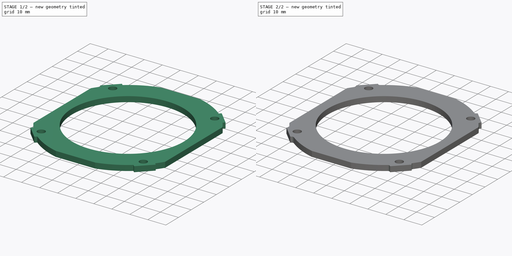
[diagram: build sequence overview — one tinted view per stage of 2, left to right]
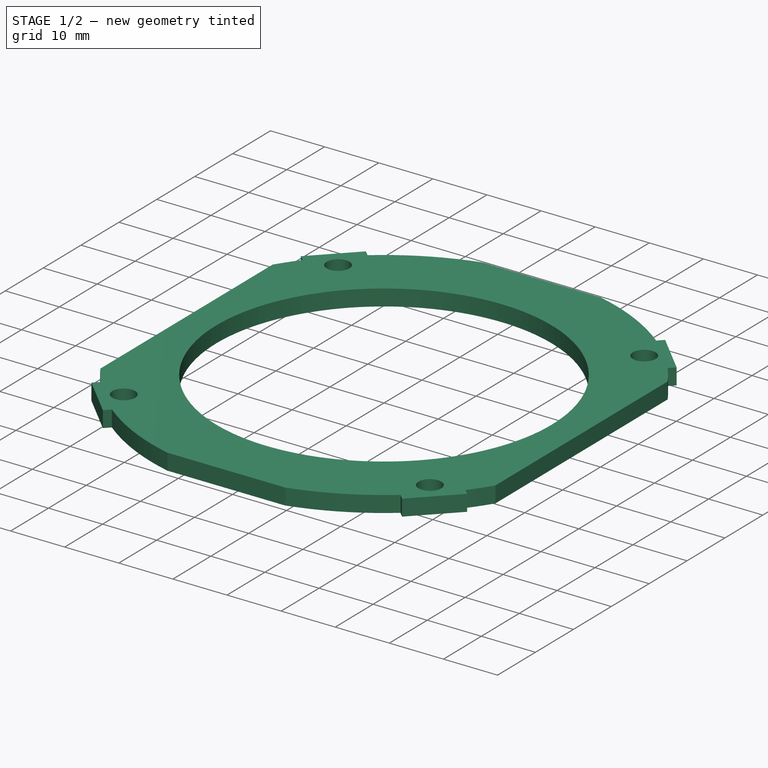
[diagram: stage 1 of 2 — iso view after this stage's code; geometry added in this stage tinted green]
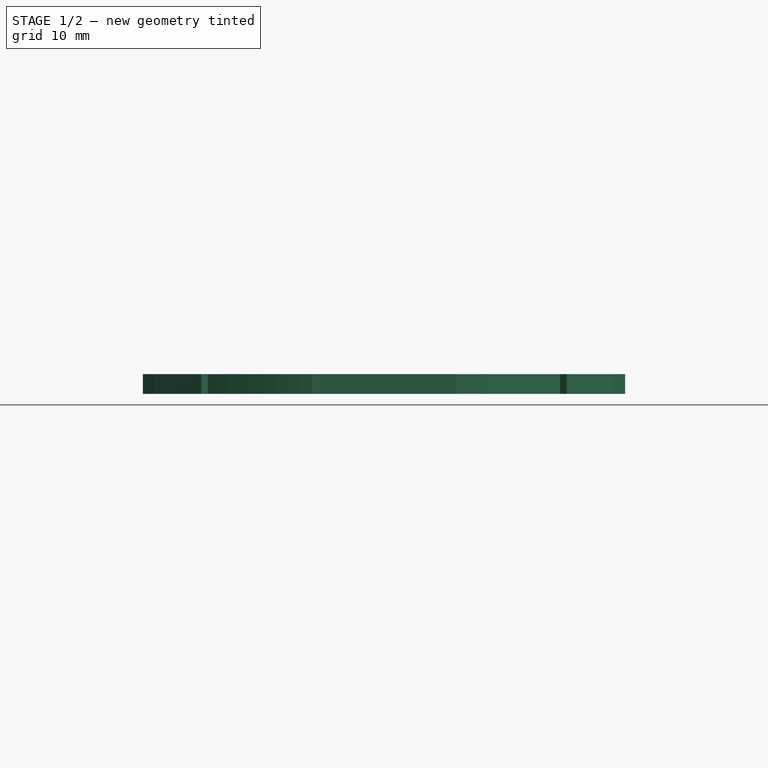
[diagram: stage 1 of 2 — front view after this stage's code; geometry added in this stage tinted green]
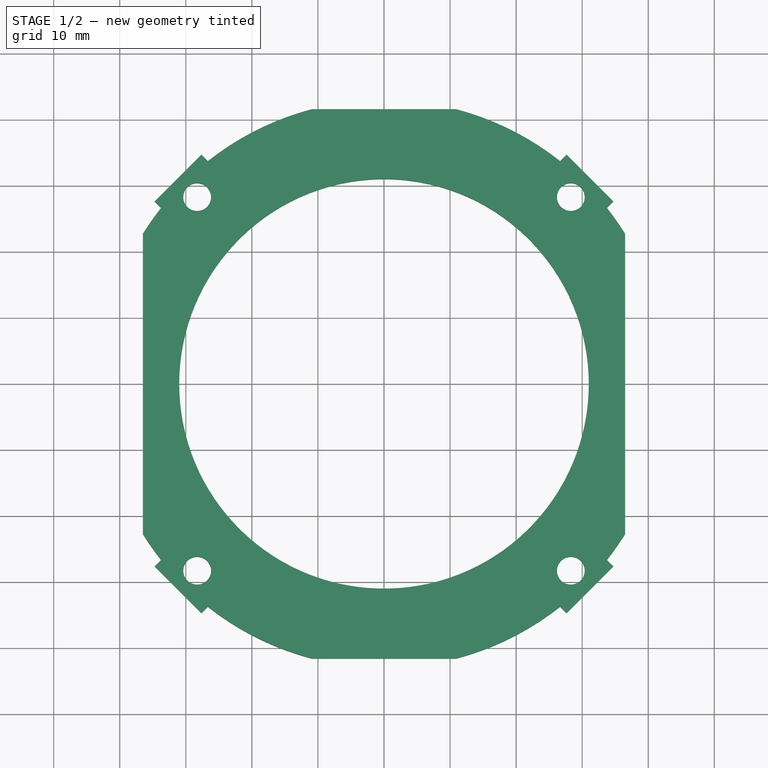
[diagram: stage 1 of 2 — top view after this stage's code; geometry added in this stage tinted green]
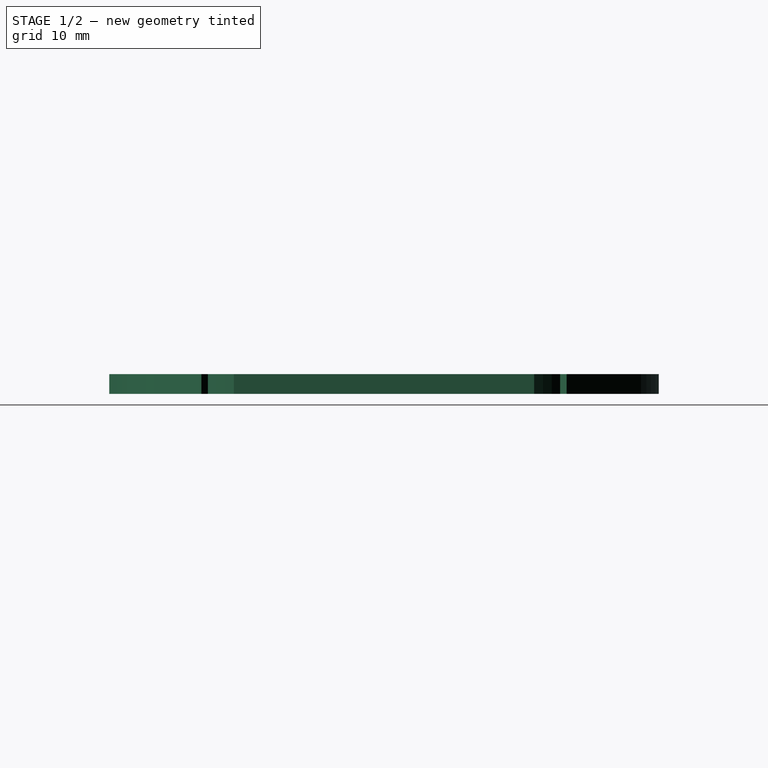
[diagram: stage 1 of 2 — right view after this stage's code; geometry added in this stage tinted green]
FCSTD DOCUMENT  (FreeCAD 0.17R5235 (Git shallow))
Label: C1011-3
License: CreativeCommons Attribution-ShareAlike
LicenseURL: http://creativecommons.org/licenses/by-sa/4.0/
objects: Sketcher::SketchObject×1, PartDesign::Pad×1, PartDesign::Fillet×1, PartDesign::Body×1, TechDraw::DrawSVGTemplate×1, TechDraw::DrawProjGroupItem×1, TechDraw::DrawProjGroup×1, TechDraw::DrawPage×1
note: 5 computed .brp shape members not serialized (recipe doc carries the construction recipe); baked Part::Feature solids carry a one-line shape summary decoded from their .brp

FEATURE [Sketcher::SketchObject] Sketch001
  MapMode = 5
  Support = -> [XY_Plane]
  sketch-geometry (37):
    g0: Circle CenterX=0 CenterY=0 CenterZ=0 NormalX=0 NormalY=0 NormalZ=1 AngleXU=0 Radius=31
    g1: LineSegment StartX=-36.5 StartY=22.7321 StartZ=0 EndX=-36.5 EndY=-22.7321 EndZ=0
    g2: LineSegment StartX=-10.883 StartY=-41.6 StartZ=0 EndX=10.883 EndY=-41.6 EndZ=0
    g3: LineSegment StartX=36.5 StartY=-22.7321 StartZ=0 EndX=36.5 EndY=22.7321 EndZ=0
    g4: LineSegment StartX=10.883 StartY=41.6 StartZ=0 EndX=-10.883 EndY=41.6 EndZ=0
    g5: Circle CenterX=-28.2843 CenterY=28.2843 CenterZ=0 NormalX=0 NormalY=0 NormalZ=1 AngleXU=0 Radius=2.1
    g6: Circle CenterX=28.2843 CenterY=28.2843 CenterZ=0 NormalX=0 NormalY=0 NormalZ=1 AngleXU=0 Radius=2.1
    g7: Circle CenterX=28.2843 CenterY=-28.2843 CenterZ=0 NormalX=0 NormalY=0 NormalZ=1 AngleXU=0 Radius=2.1
    g8: Circle CenterX=-28.2843 CenterY=-28.2843 CenterZ=0 NormalX=0 NormalY=0 NormalZ=1 AngleXU=0 Radius=2.1
    g9: LineSegment [constr] StartX=-28.2843 StartY=28.2843 StartZ=0 EndX=0 EndY=0 EndZ=0
    g10: LineSegment [constr] StartX=0 StartY=0 StartZ=0 EndX=28.2843 EndY=28.2843 EndZ=0
    g11: LineSegment [constr] StartX=0 StartY=0 StartZ=0 EndX=28.2843 EndY=-28.2843 EndZ=0
    g12: LineSegment [constr] StartX=0 StartY=0 StartZ=0 EndX=-28.2843 EndY=-28.2843 EndZ=0
    g13: LineSegment StartX=-33.7349 StartY=-26.6638 StartZ=0 EndX=-34.7189 EndY=-27.6479 EndZ=0
    g14: LineSegment StartX=-34.7189 StartY=-27.6479 StartZ=0 EndX=-27.6479 EndY=-34.7189 EndZ=0
    g15: LineSegment StartX=-27.6479 StartY=-34.7189 StartZ=0 EndX=-26.6638 EndY=-33.7349 EndZ=0
    g16: ArcOfCircle CenterX=0 CenterY=0 CenterZ=0 NormalX=0 NormalY=0 NormalZ=1 AngleXU=0 Radius=43 StartAngle=4.04353 EndAngle=4.45651
    g17: ArcOfCircle CenterX=0 CenterY=0 CenterZ=0 NormalX=0 NormalY=0 NormalZ=1 AngleXU=0 Radius=43 StartAngle=3.69861 EndAngle=3.81045
    g18: ArcOfCircle CenterX=0 CenterY=0 CenterZ=0 NormalX=0 NormalY=0 NormalZ=1 AngleXU=0 Radius=43 StartAngle=4.96827 EndAngle=5.38124
    g19: LineSegment StartX=26.6638 StartY=-33.7349 StartZ=0 EndX=27.6479 EndY=-34.7189 EndZ=0
    g20: LineSegment StartX=27.6479 StartY=-34.7189 StartZ=0 EndX=34.7189 EndY=-27.6479 EndZ=0
    g21: LineSegment StartX=34.7189 StartY=-27.6479 StartZ=0 EndX=33.7349 EndY=-26.6638 EndZ=0
    g22: ArcOfCircle CenterX=0 CenterY=0 CenterZ=0 NormalX=0 NormalY=0 NormalZ=1 AngleXU=0 Radius=43 StartAngle=5.61433 EndAngle=5.72617
    g23: LineSegment [constr] StartX=28.2843 StartY=-28.2843 StartZ=0 EndX=31.1834 EndY=-31.1834 EndZ=0
    g24: LineSegment [constr] StartX=-28.2843 StartY=-28.2843 StartZ=0 EndX=-31.1834 EndY=-31.1834 EndZ=0
    g25: ArcOfCircle CenterX=0 CenterY=0 CenterZ=0 NormalX=0 NormalY=0 NormalZ=1 AngleXU=0 Radius=43 StartAngle=1.82667 EndAngle=2.23965
    g26: LineSegment StartX=-33.7349 StartY=26.6638 StartZ=0 EndX=-34.7189 EndY=27.6479 EndZ=0
    g27: LineSegment StartX=-34.7189 StartY=27.6479 StartZ=0 EndX=-27.6479 EndY=34.7189 EndZ=0
    g28: LineSegment StartX=-27.6479 StartY=34.7189 StartZ=0 EndX=-26.6638 EndY=33.7349 EndZ=0
    g29: LineSegment [constr] StartX=-28.2843 StartY=28.2843 StartZ=0 EndX=-31.1834 EndY=31.1834 EndZ=0
    g30: ArcOfCircle CenterX=0 CenterY=0 CenterZ=0 NormalX=0 NormalY=0 NormalZ=1 AngleXU=0 Radius=43 StartAngle=2.47274 EndAngle=2.58458
    g31: ArcOfCircle CenterX=0 CenterY=0 CenterZ=0 NormalX=0 NormalY=0 NormalZ=1 AngleXU=0 Radius=43 StartAngle=0.901941 EndAngle=1.31492
    g32: LineSegment StartX=26.6638 StartY=33.7349 StartZ=0 EndX=27.6479 EndY=34.7189 EndZ=0
    g33: LineSegment StartX=27.6479 StartY=34.7189 StartZ=0 EndX=34.7189 EndY=27.6479 EndZ=0
    g34: LineSegment StartX=34.7189 StartY=27.6479 StartZ=0 EndX=33.7349 EndY=26.6638 EndZ=0
    g35: LineSegment [constr] StartX=28.2843 StartY=28.2843 StartZ=0 EndX=31.1834 EndY=31.1834 EndZ=0
    g36: ArcOfCircle CenterX=0 CenterY=0 CenterZ=0 NormalX=0 NormalY=0 NormalZ=1 AngleXU=0 Radius=43 StartAngle=0.557014 EndAngle=0.668855
  constraints (105):
    c: Radius(g0) = 31
    c: Vertical(g3)
    c: Coincident(g0,g-1)
    c: Horizontal(g4)
    c: Horizontal(g2)
    c: Equal(g3,g1)
    c: DistanceX(g1,g3) = 73
    c: Equal(g2,g4)
    c: Vertical(g1)
    c: DistanceY(g2,g4) = 83.2
    c: Equal(g8,g7)
    c: Equal(g7,g6)
    c: Equal(g6,g5)
    c: Radius(g6) = 2.1
    c: Coincident(g9,g5)
    c: Coincident(g9,g-1)
    c: Coincident(g10,g-1)
    c: Coincident(g10,g6)
    c: Coincident(g11,g-1)
    c: Coincident(g11,g7)
    c: Coincident(g12,g-1)
    c: Coincident(g12,g8)
    c: Equal(g10,g9)
    c: Equal(g9,g12)
    c: Equal(g12,g11)
    c: Perpendicular(g9,g10)
    c: PointOnObject(g6,g12)
    c: PointOnObject(g7,g9)
    c: Angle(g11,g-1) = 0.785398
    c: Distance(g10) = 40
    c: Coincident(g13,g14)
    c: Coincident(g14,g15)
    c: Coincident(g16,g-1)
    c: Coincident(g16,g15)
    c: Coincident(g17,g-1)
    c: Coincident(g17,g13)
    c: Coincident(g17,g1)
    c: Coincident(g16,g2)
    c: Equal(g16,g17)
    c: Radius(g16) = 43
    c: Parallel(g15,g13)
    c: Parallel(g13,g12)
    c: Perpendicular(g15,g14)
    c: Distance(g8,g14) = 4.1
    c: Symmetric(g14,g13,g12)
    c: Distance(g14) = 10
    c: Coincident(g18,g-1)
    c: Coincident(g18,g2)
    c: Coincident(g18,g19)
    c: Coincident(g19,g20)
    c: Coincident(g20,g21)
    c: Coincident(g22,g-1)
    c: Coincident(g22,g21)
    c: Equal(g18,g16)
    c: Equal(g16,g22)
    c: Equal(g20,g14)
    c: Parallel(g19,g11)
    c: Parallel(g11,g21)
    c: Symmetric(g20,g19,g11)
    c: Coincident(g22,g3)
    c: Coincident(g23,g7)
    c: PointOnObject(g23,g20)
    c: PointOnObject(g23,g11)
    c: Coincident(g24,g8)
    c: PointOnObject(g24,g14)
    c: PointOnObject(g24,g12)
    c: Equal(g24,g23)
    c: Coincident(g25,g-1)
    c: Coincident(g25,g4)
    c: Coincident(g26,g27)
    c: Coincident(g27,g28)
    c: Coincident(g28,g25)
    c: Coincident(g29,g5)
    c: PointOnObject(g29,g27)
    c: PointOnObject(g29,g9)
    c: Parallel(g29,g26)
    c: Parallel(g26,g28)
    c: Perpendicular(g26,g27)
    c: Equal(g25,g16)
    c: Symmetric(g26,g27,g9)
    c: Equal(g27,g14)
    c: Equal(g29,g24)
    c: Coincident(g30,g-1)
    c: Coincident(g30,g1)
    c: Equal(g30,g16)
    c: Coincident(g26,g30)
    c: DistanceX(g1,g-1) = 36.5
    c: Coincident(g31,g-1)
    c: Coincident(g31,g4)
    c: Coincident(g32,g31)
    c: Coincident(g34,g33)
    c: Parallel(g10,g34)
    c: Parallel(g34,g32)
    c: Perpendicular(g34,g33)
    c: Coincident(g35,g6)
    c: PointOnObject(g35,g10)
    c: PointOnObject(g35,g33)
    c: Coincident(g32,g33)
    c: Equal(g33,g14)
    c: Symmetric(g32,g33,g35)
    c: Equal(g31,g25)
    c: Equal(g35,g24)
    c: Coincident(g36,g3)
    c: Coincident(g36,g-1)
    c: Coincident(g36,g34)
FEATURE [PartDesign::Pad] Pad
  Length = 3
  Length2 = 100
  Profile = -> Sketch001
  Type = 0
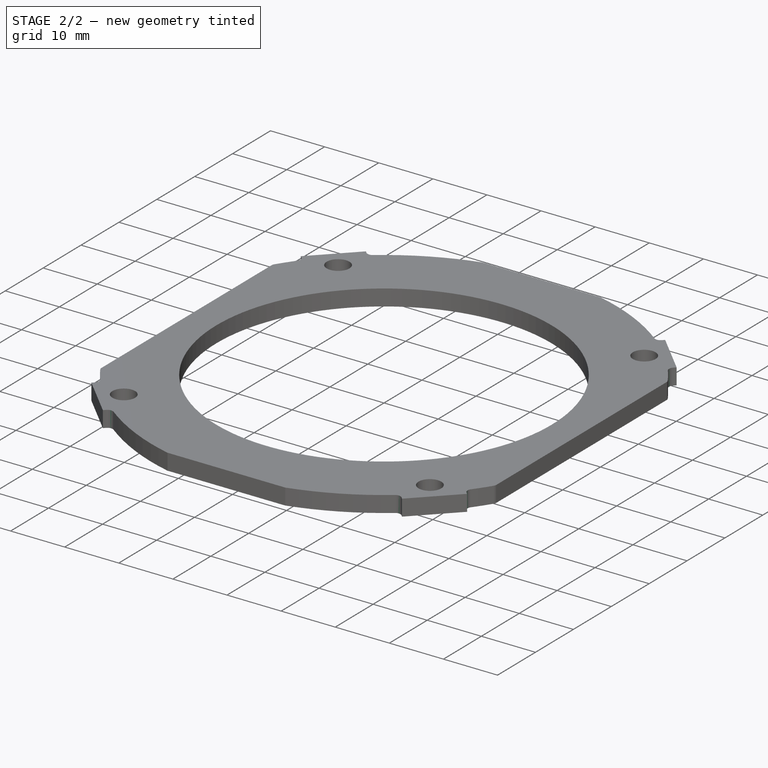
[diagram: stage 2 of 2 — iso view after this stage's code; geometry added in this stage tinted green]
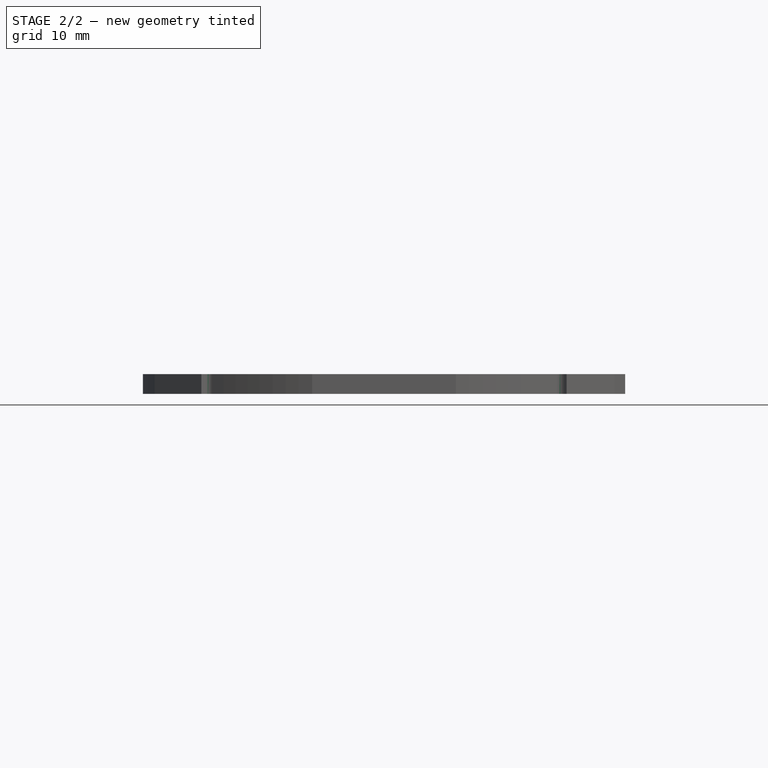
[diagram: stage 2 of 2 — front view after this stage's code; geometry added in this stage tinted green]
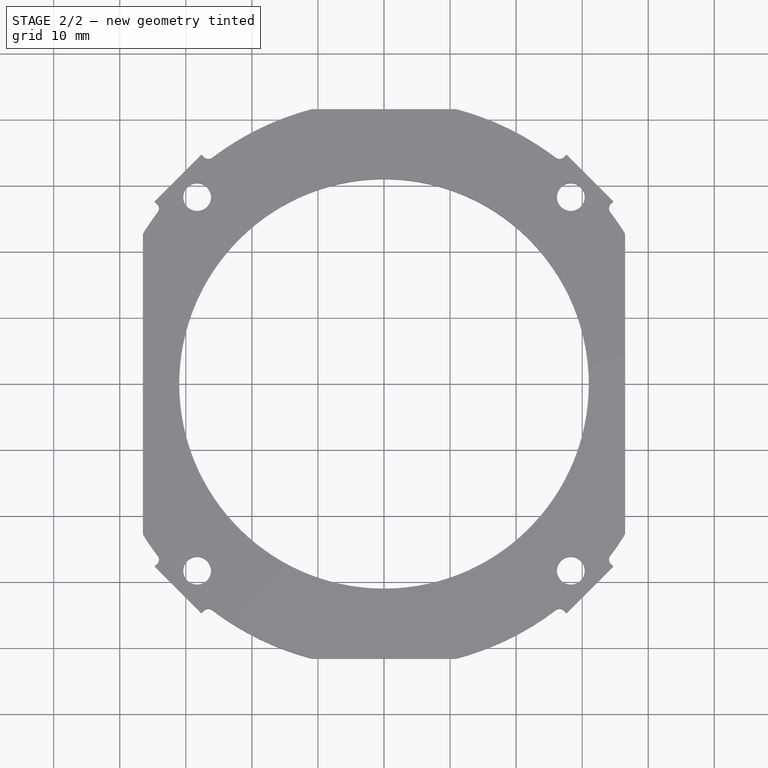
[diagram: stage 2 of 2 — top view after this stage's code; geometry added in this stage tinted green]
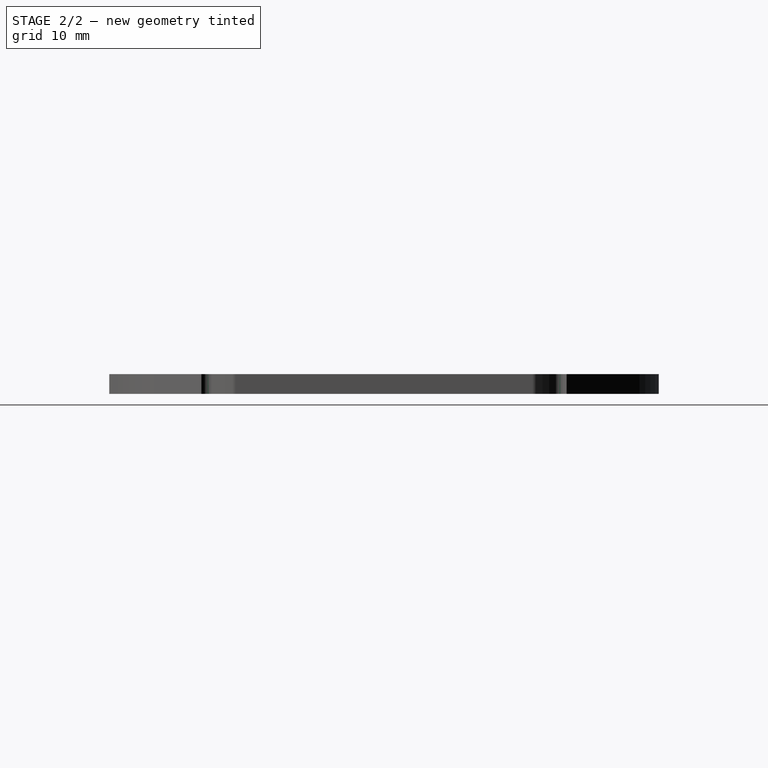
[diagram: stage 2 of 2 — right view after this stage's code; geometry added in this stage tinted green]
FEATURE [PartDesign::Fillet] Fillet
  Base = -> Pad [Edge62,Edge53,Edge44,Edge26,Edge35,Edge17,Edge8,Edge1,Edge5,Edge2,Edge41,Edge38]
  BaseFeature = -> Pad
  Radius = 1
FEATURE [PartDesign::Body] Body
  Group = -> [Sketch001,Pad,Fillet]
  Origin = -> Origin
  Tip = -> Fillet
FEATURE [TechDraw::DrawSVGTemplate] Template
  Height = 210
  Orientation = 1
  Width = 297
FEATURE [TechDraw::DrawProjGroupItem] ProjItem  label="Front"
  CoarseView = false
  Direction = (0,0,1)
  Focus = 100
  HardHidden = false
  IsoCount = 0
  IsoHidden = false
  IsoVisible = false
  LockPosition = false
  Perspective = false
  Rotation = 0
  RotationVector = (1,0,0)
  ScaleType = 0
  SeamHidden = false
  SeamVisible = false
  SmoothHidden = false
  SmoothVisible = false
  Source = -> [Fillet]
  Type = 0
  X = 0
  Y = 0
FEATURE [TechDraw::DrawProjGroup] ProjGroup
  Anchor = -> ProjItem
  AutoDistribute = true
  CubeDirs = (6) [(0,-1,-6.12323e-17),(0,-6.12323e-17,1),(-1,0,0),(0,6.12323e-17,-1),(1,0,0),(0,1,6.12323e-17)]
  CubeRotations = (6) [(1,0,0),(1,0,0),(0,6.12323e-17,1),(-1,0,0),(0,-6.12323e-17,-1),(1,0,0)]
  LockPosition = false
  ProjectionType = 0
  Rotation = 0
  ScaleType = 2
  Source = -> [Fillet]
  Views = -> [ProjItem]
  X = 148.5
  Y = 105
  spacingX = 15
  spacingY = 15
FEATURE [TechDraw::DrawPage] Page
  KeepUpdated = true
  ProjectionType = 0
  Template = -> Template
  Views = -> [ProjGroup]
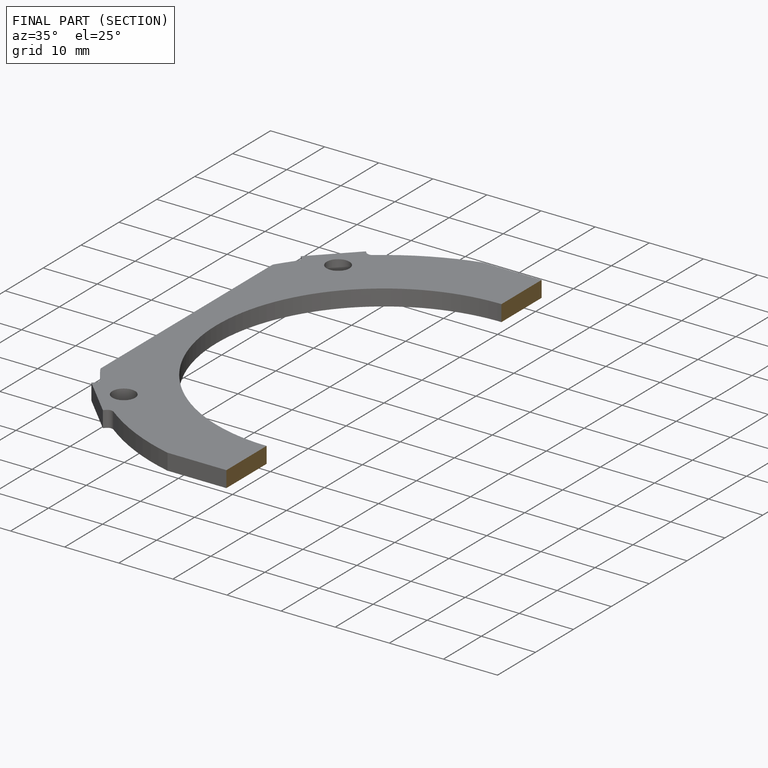
[diagram: finished part — half-section view (interior)]
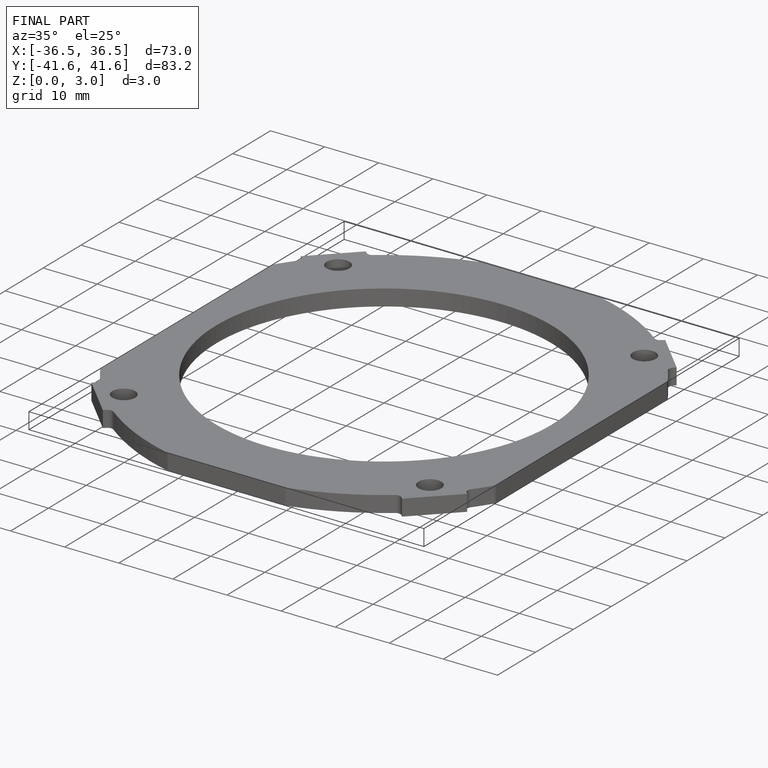
[diagram: finished part — iso view with bounding-box wireframe]
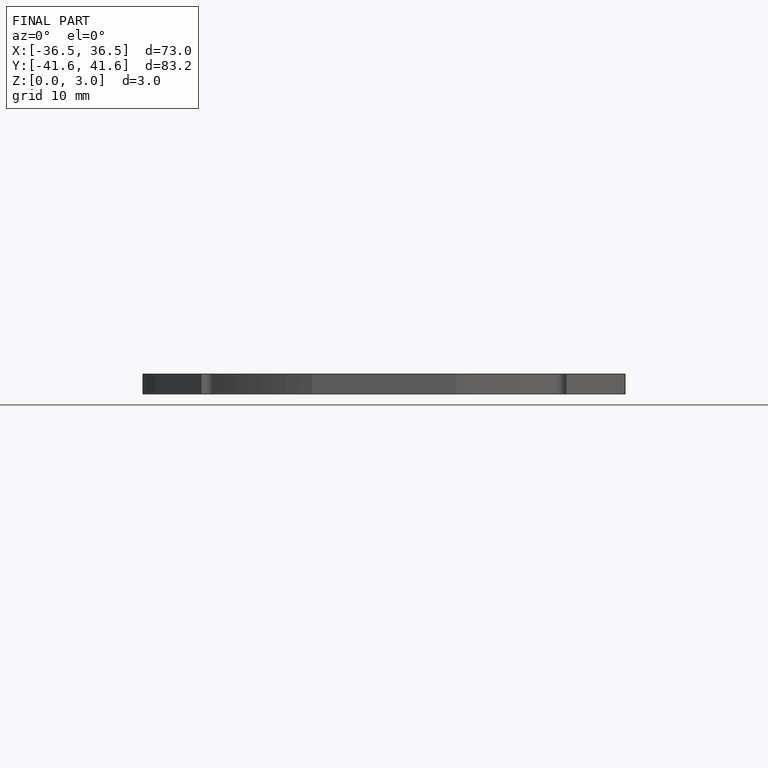
[diagram: finished part — front view with bounding-box wireframe]
